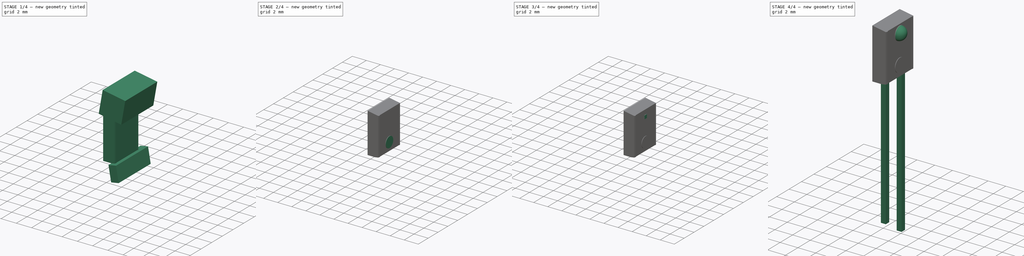
[diagram: build sequence overview — one tinted view per stage of 4, left to right]
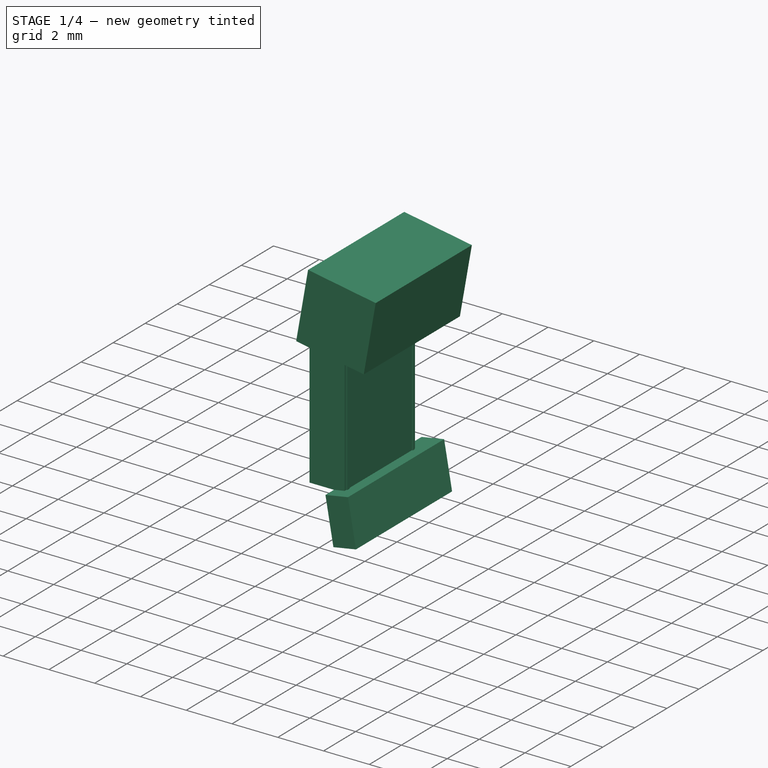
[diagram: stage 1 of 4 — iso view after this stage's code; geometry added in this stage tinted green]
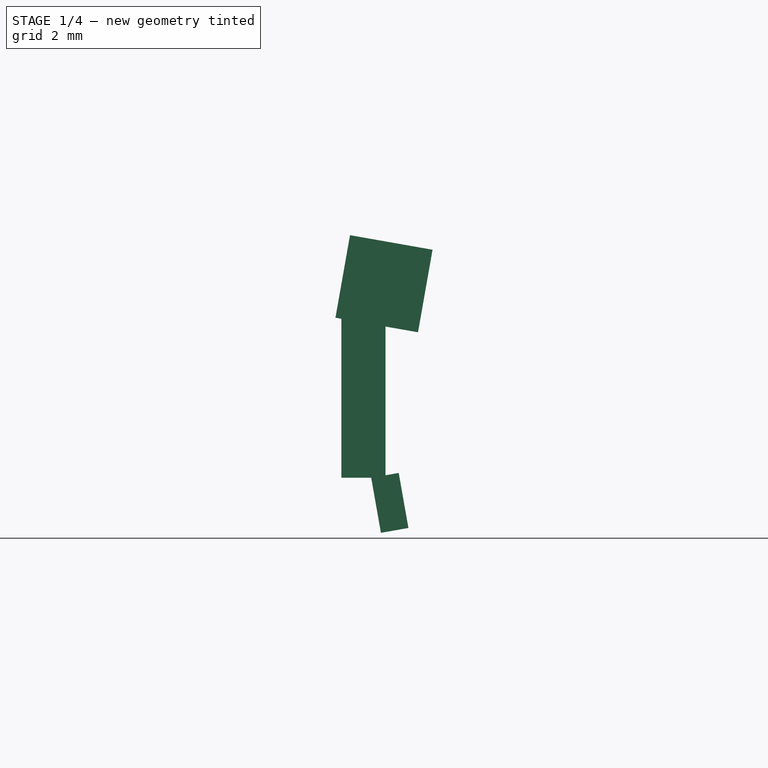
[diagram: stage 1 of 4 — front view after this stage's code; geometry added in this stage tinted green]
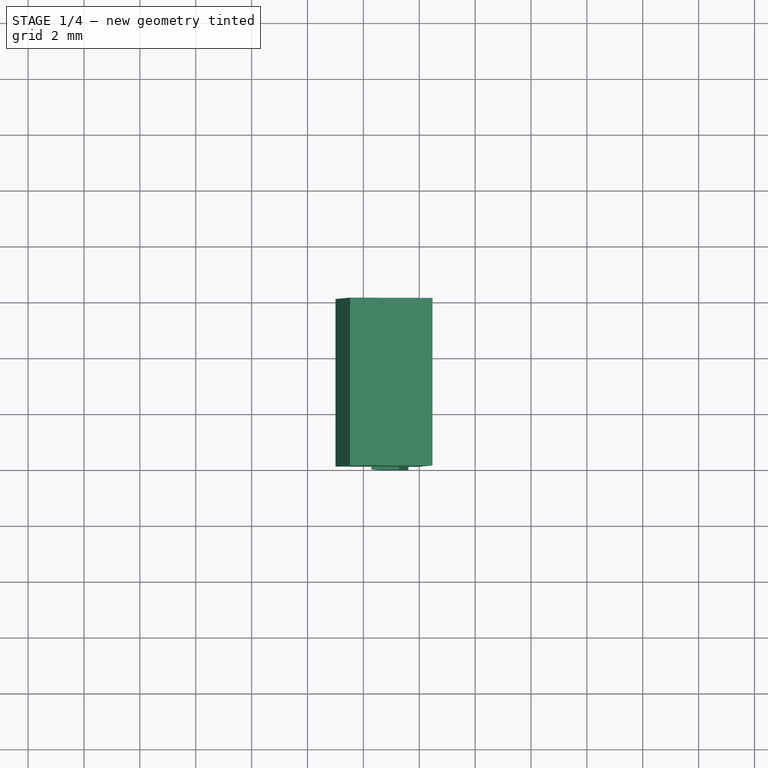
[diagram: stage 1 of 4 — top view after this stage's code; geometry added in this stage tinted green]
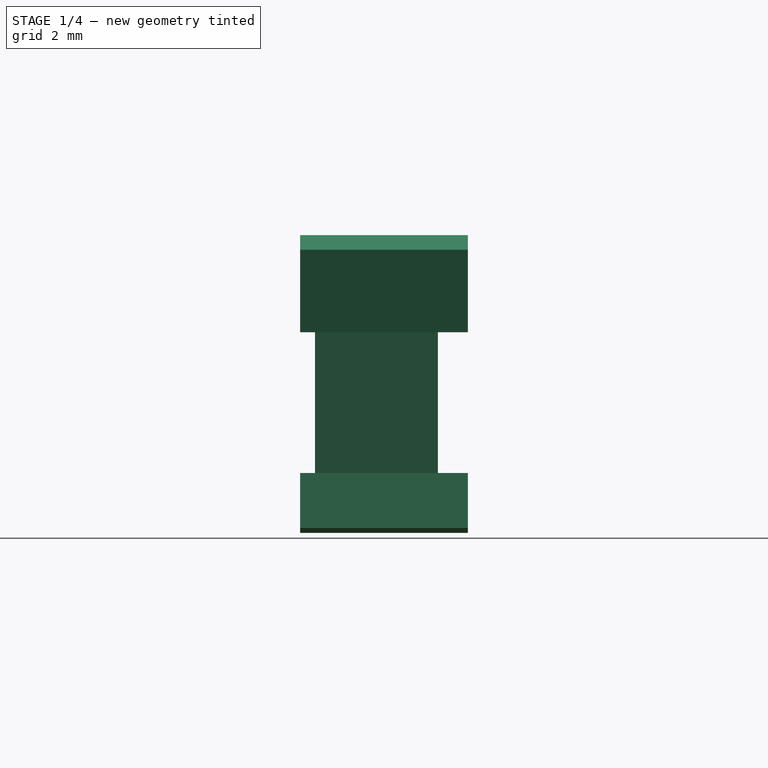
[diagram: stage 1 of 4 — right view after this stage's code; geometry added in this stage tinted green]
FCSTD DOCUMENT  (FreeCAD 0.17R11223 (Git))
Label: Phototransistor_Osram_LPT80A_04
License: All rights reserved
LicenseURL: http://en.wikipedia.org/wiki/All_rights_reserved
objects: Part::Box×5, Part::Cut×2, Sketcher::SketchObject×1, PartDesign::Pad×1, PartDesign::Body×1, Part::Cylinder×1, Part::Sphere×1, Part::MultiFuse×1
note: 14 computed .brp shape members not serialized (recipe doc carries the construction recipe); baked Part::Feature solids carry a one-line shape summary decoded from their .brp

FEATURE [Sketcher::SketchObject] Sketch
  MapMode = 5
  Support = -> [XY_Plane]
  sketch-geometry (13):
    g0: LineSegment StartX=-0.7875 StartY=0.93 StartZ=0 EndX=-0.7875 EndY=-3.47 EndZ=0
    g1: LineSegment StartX=0.7925 StartY=-3.37 StartZ=0 EndX=0.7925 EndY=-3.3699 EndZ=0
    g2: LineSegment StartX=0.7925 StartY=-3.3699 StartZ=0 EndX=0.7925 EndY=-3.2127 EndZ=0
    g3: LineSegment StartX=0.7425 StartY=0.93 StartZ=0 EndX=-0.7875 EndY=0.93 EndZ=0
    g4: LineSegment StartX=0.7425 StartY=0.93 StartZ=0 EndX=0.7425 EndY=0.83 EndZ=0
    g5: LineSegment StartX=0.7425 StartY=0.83 StartZ=0 EndX=0.7925 EndY=0.83 EndZ=0
    g6: LineSegment StartX=0.7925 StartY=0.73 StartZ=0 EndX=0.7925 EndY=0.83 EndZ=0
    g7: LineSegment StartX=0.7425 StartY=0.73 StartZ=0 EndX=0.7925 EndY=0.73 EndZ=0
    g8: LineSegment StartX=0.7925 StartY=-3.37 StartZ=0 EndX=0.7425 EndY=-3.37 EndZ=0
    g9: LineSegment StartX=0.7425 StartY=-3.37 StartZ=0 EndX=0.7425 EndY=-3.47 EndZ=0
    g10: LineSegment StartX=0.7425 StartY=-3.47 StartZ=0 EndX=-0.7875 EndY=-3.47 EndZ=0
    g11: LineSegment StartX=0.7925 StartY=-3.2127 StartZ=0 EndX=0.7425 EndY=-3.2127 EndZ=0
    g12: LineSegment StartX=0.7425 StartY=-3.2127 StartZ=0 EndX=0.7425 EndY=0.73 EndZ=0
  constraints (38):
    c: Vertical(g0)
    c: Vertical(g1)
    c: Coincident(g1,g2)
    c: Coincident(g3,g0)
    c: Horizontal(g3)
    c: DistanceY(g0,g0) = 4.4
    c: DistanceY(g-1,g0) = 0.93
    c: DistanceX(g0,g-1) = 0.7875
    c: Coincident(g3,g4)
    c: Vertical(g4)
    c: Coincident(g4,g5)
    c: Horizontal(g5)
    c: Coincident(g6,g5)
    c: Coincident(g7,g6)
    c: DistanceY(g4,g3) = 0.1
    c: DistanceX(g4,g5) = 0.05
    c: DistanceY(g6,g5) = 0.1
    c: DistanceX(g5,g6) = 0
    c: DistanceY(g7,g6) = 0
    c: DistanceX(g7,g6) = 0.05
    c: Coincident(g1,g8)
    c: Horizontal(g8)
    c: Coincident(g8,g9)
    c: Vertical(g9)
    c: Coincident(g9,g10)
    c: Coincident(g10,g0)
    c: Horizontal(g10)
    c: DistanceX(g8,g1) = 0.05
    c: DistanceY(g9,g8) = 0.1
    c: DistanceY(g1,g1) = 0.0001
    c: Coincident(g2,g11)
    c: Horizontal(g11)
    c: Coincident(g11,g12)
    c: Coincident(g12,g7)
    c: DistanceX(g11,g2) = 0.05
    c: DistanceX(g1,g2) = 0
    c: DistanceX(g7,g11) = 0
    c: DistanceX(g0,g5) = 1.58
FEATURE [PartDesign::Pad] Pad
  Length = 5.7
  Length2 = 100
  Profile = -> Sketch
  Type = 0
FEATURE [Part::Box] Box003  label="Kub"
  AttacherType = Attacher::AttachEngine3D
  Height = 3
  Length = 3
  Placement = pos=(-1,-4,5.73) rot=(0,1,0;0.174533rad)
  Width = 6
FEATURE [Part::Box] Box004  label="Kub001"
  AttacherType = Attacher::AttachEngine3D
  Height = 1
  Length = 2
  Placement = pos=(0.28,-4,0) rot=(0,1,0;1.39626rad)
  Width = 6
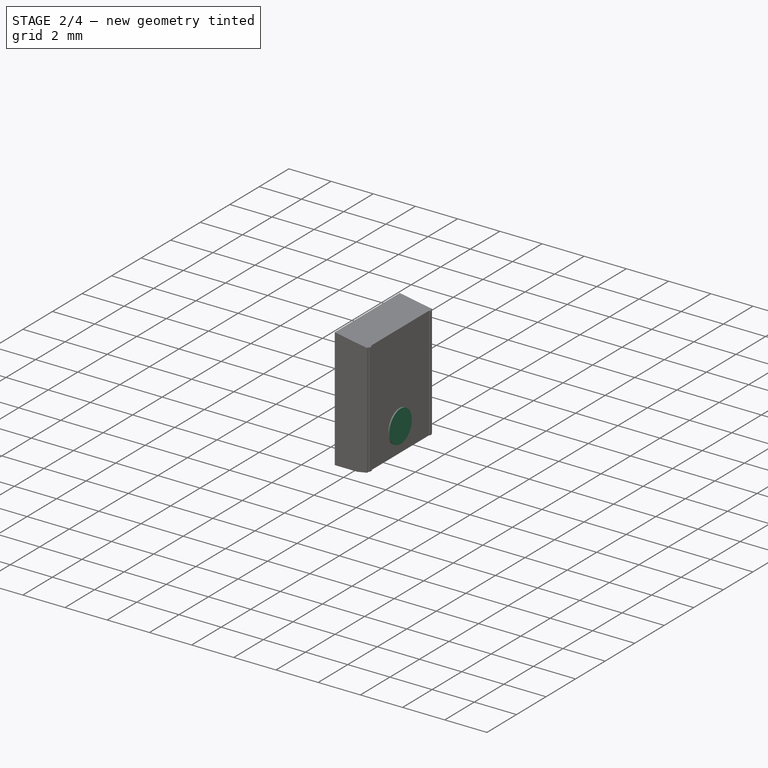
[diagram: stage 2 of 4 — iso view after this stage's code; geometry added in this stage tinted green]
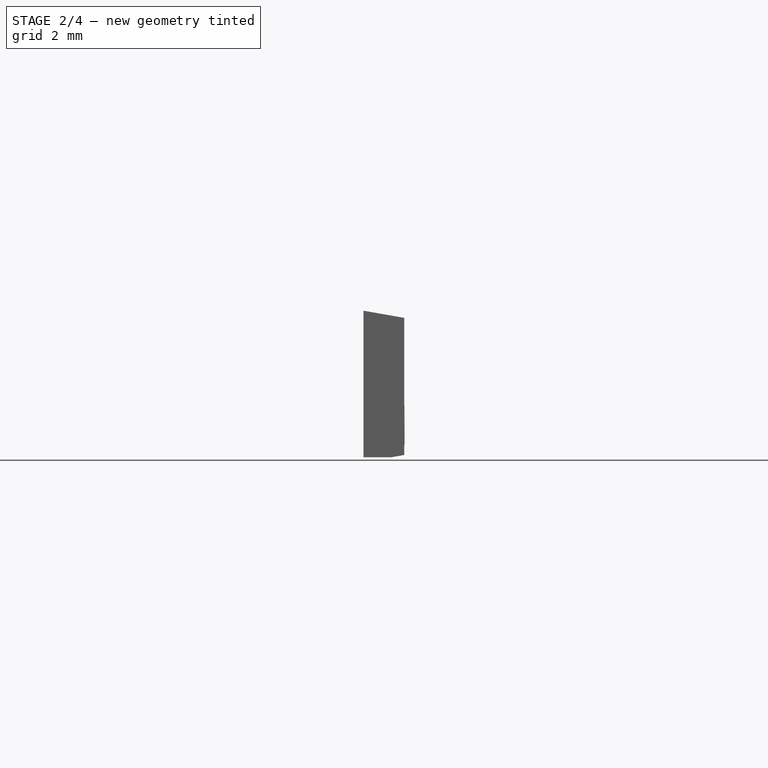
[diagram: stage 2 of 4 — front view after this stage's code; geometry added in this stage tinted green]
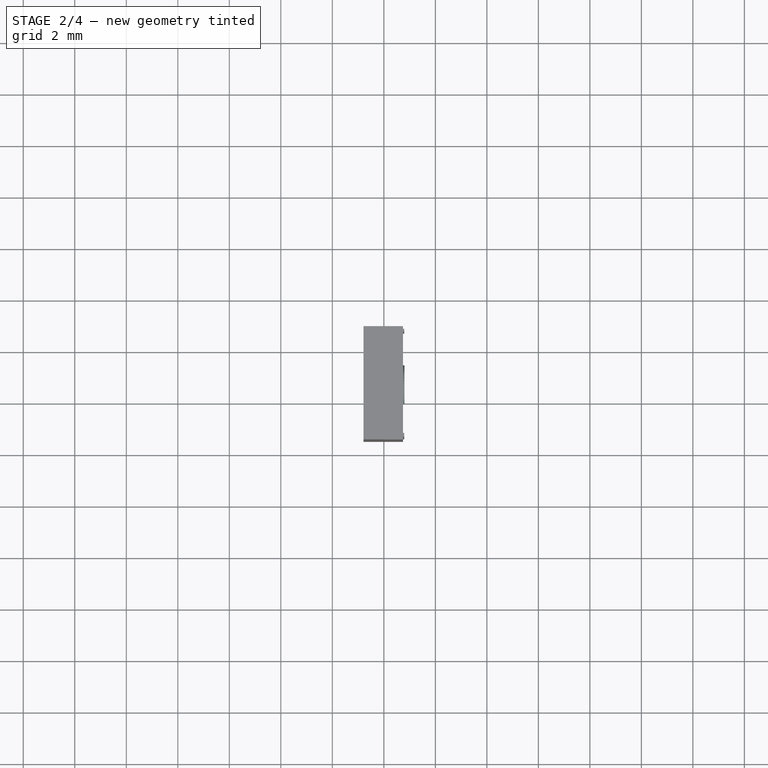
[diagram: stage 2 of 4 — top view after this stage's code; geometry added in this stage tinted green]
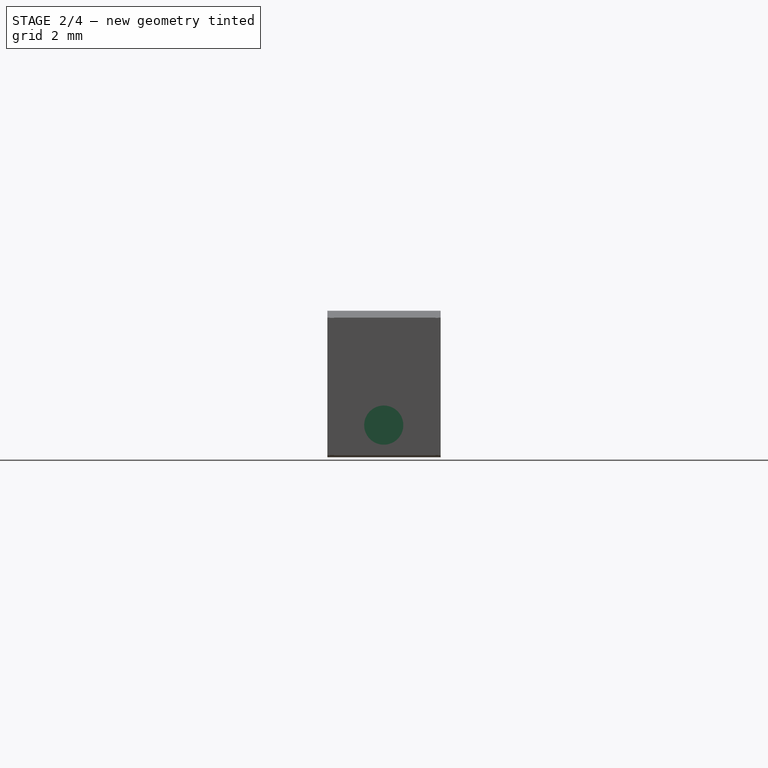
[diagram: stage 2 of 4 — right view after this stage's code; geometry added in this stage tinted green]
FEATURE [Part::Cylinder] Cylinder  label="Plastic marking"
  Angle = 360
  AttacherType = Attacher::AttachEngine3D
  Height = 0.2
  Placement = pos=(0.6,-1.28,1.25) rot=(0,1,0;1.5708rad)
  Radius = 0.76
FEATURE [Part::Cut] Cut
  Base = -> Pad
  Tool = -> Box003
FEATURE [Part::Cut] Cut001
  Base = -> Cut
  Tool = -> Box004
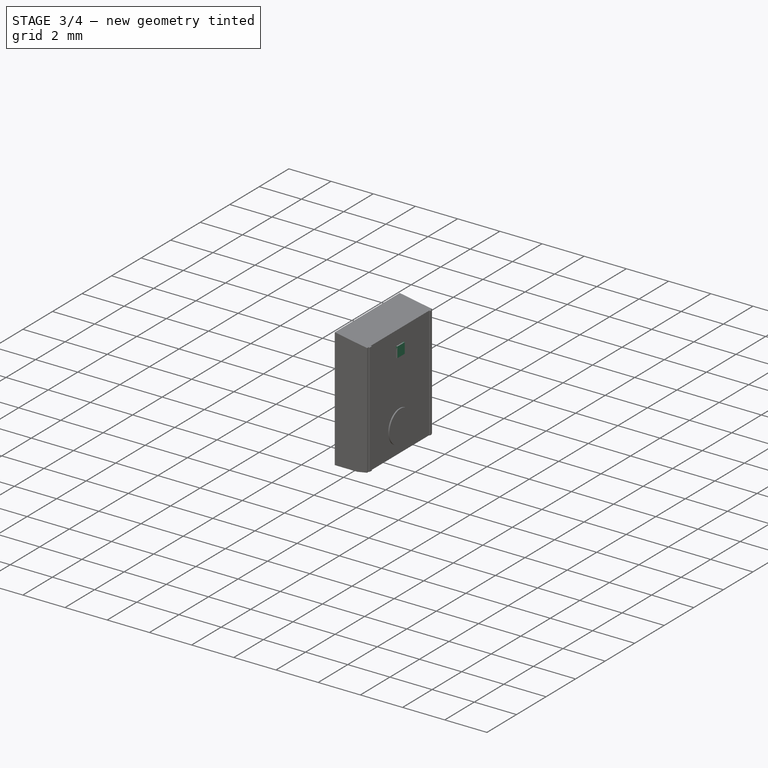
[diagram: stage 3 of 4 — iso view after this stage's code; geometry added in this stage tinted green]
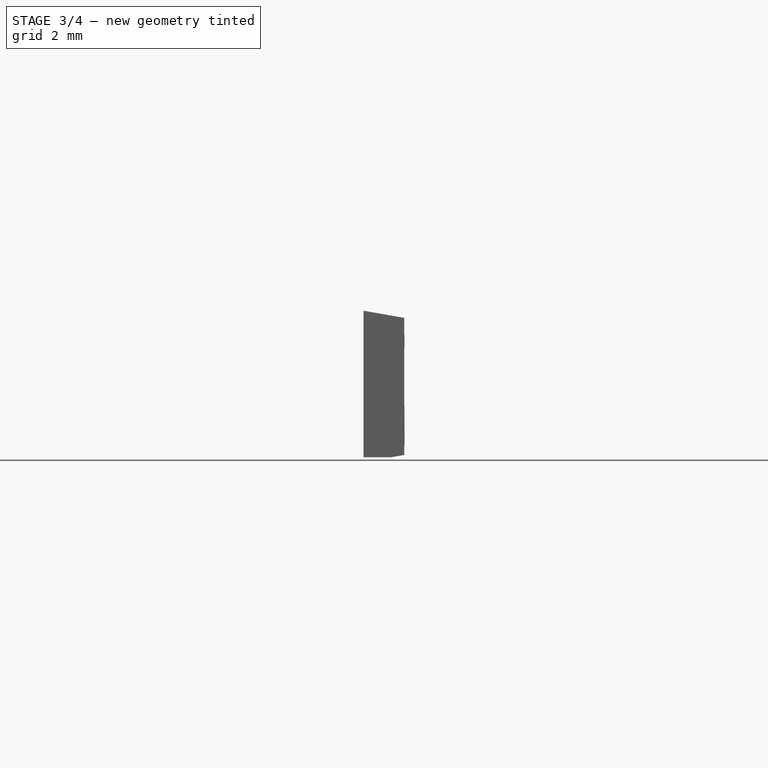
[diagram: stage 3 of 4 — front view after this stage's code; geometry added in this stage tinted green]
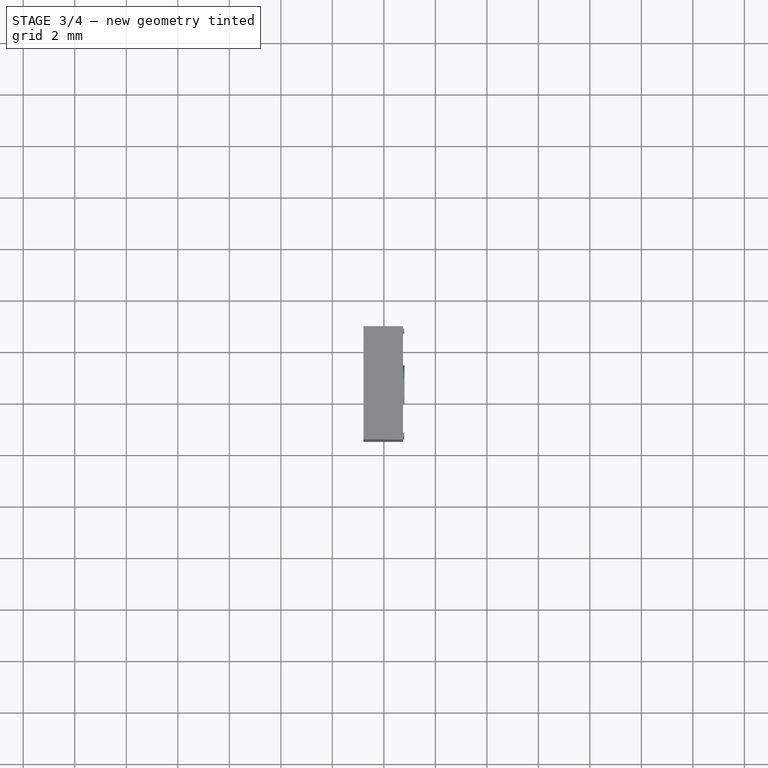
[diagram: stage 3 of 4 — top view after this stage's code; geometry added in this stage tinted green]
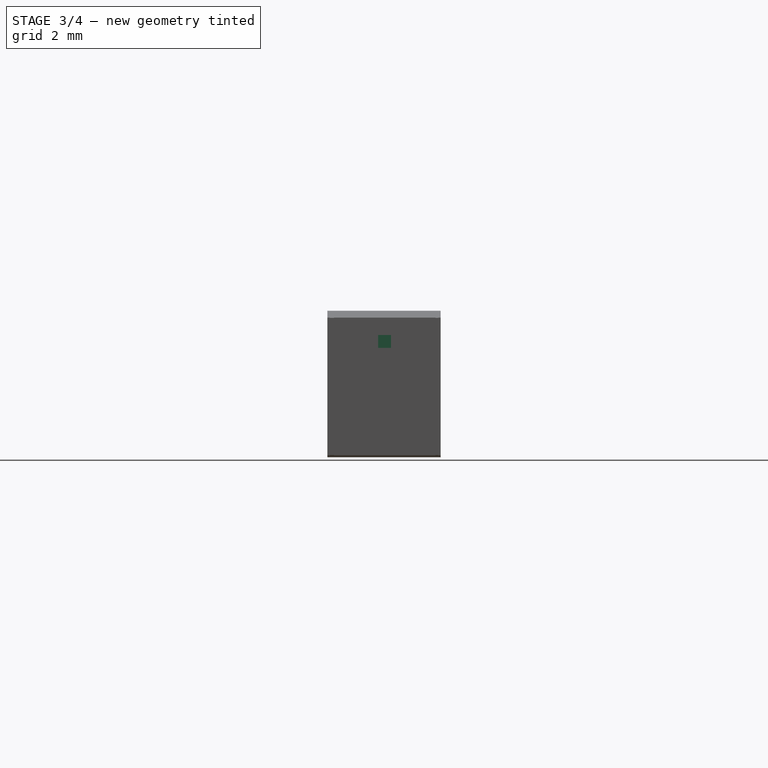
[diagram: stage 3 of 4 — right view after this stage's code; geometry added in this stage tinted green]
FEATURE [Part::Box] Box002  label="Diode"
  AttacherType = Attacher::AttachEngine3D
  Height = 0.5
  Length = 0.2
  Placement = pos=(0.6,-1.5,4.25) rot=(0,0,1;0rad)
  Width = 0.5
FEATURE [Part::MultiFuse] Fusion
  Shapes = -> [Cut001,Cylinder]
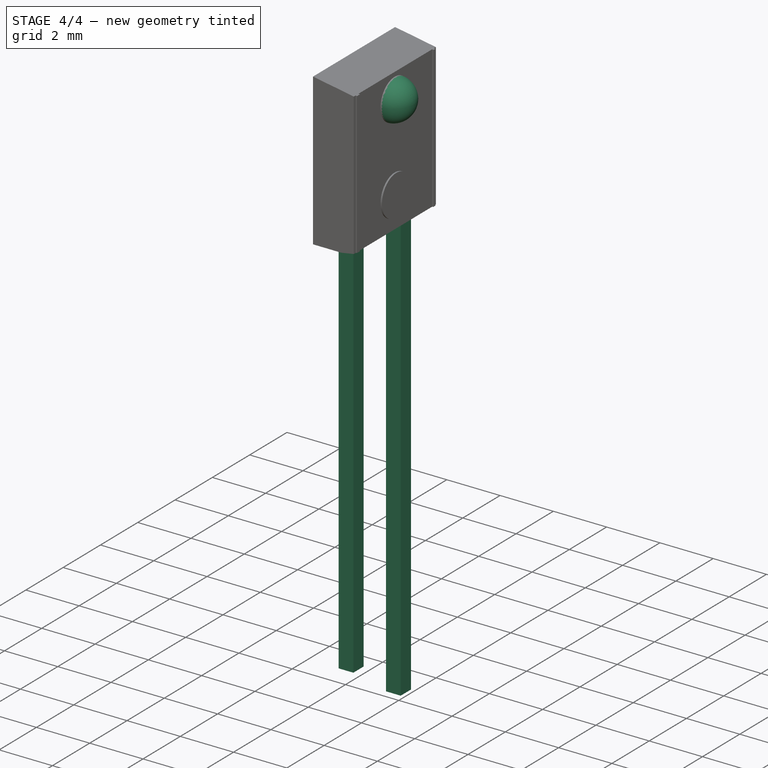
[diagram: stage 4 of 4 — iso view after this stage's code; geometry added in this stage tinted green]
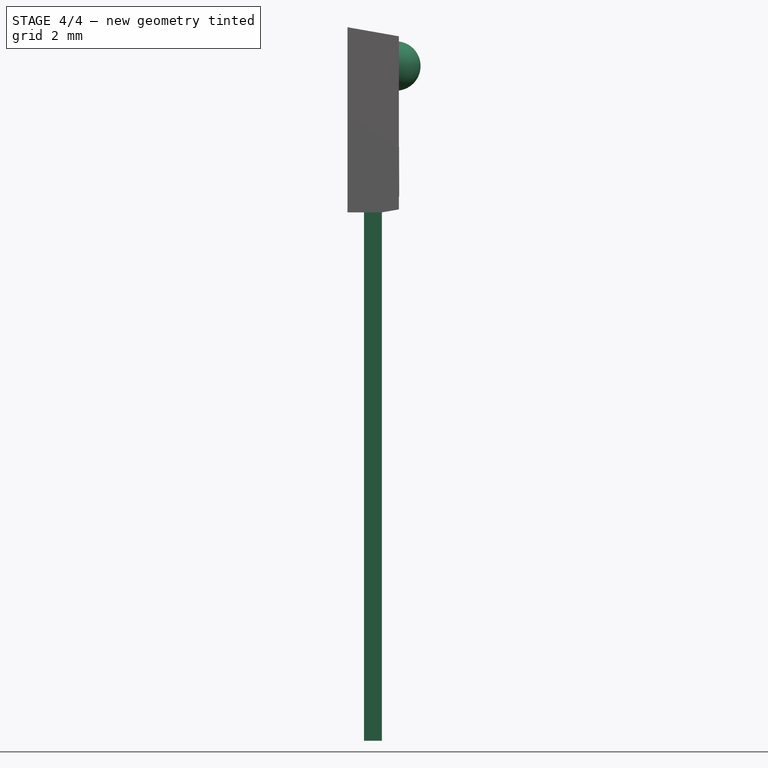
[diagram: stage 4 of 4 — front view after this stage's code; geometry added in this stage tinted green]
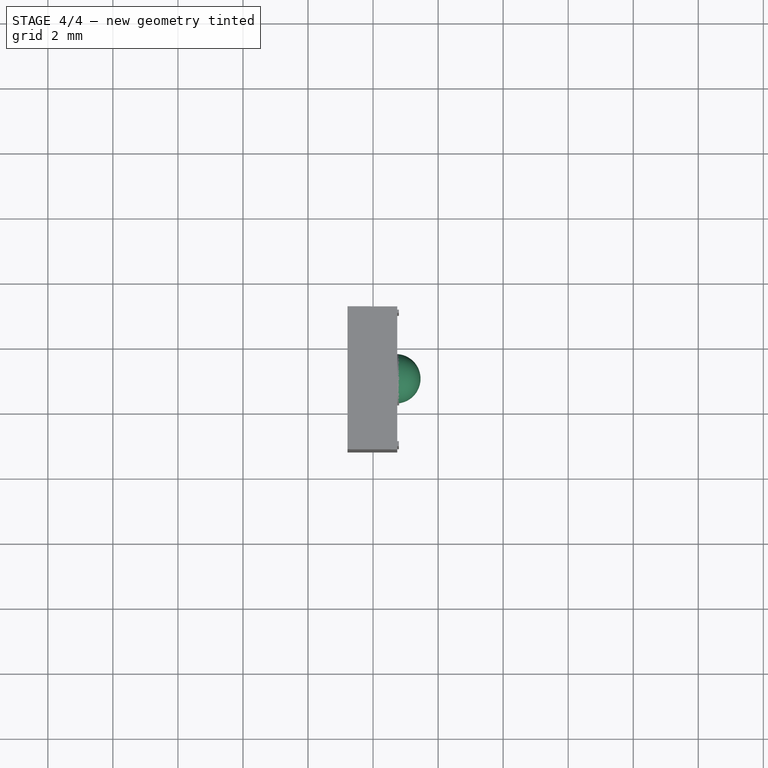
[diagram: stage 4 of 4 — top view after this stage's code; geometry added in this stage tinted green]
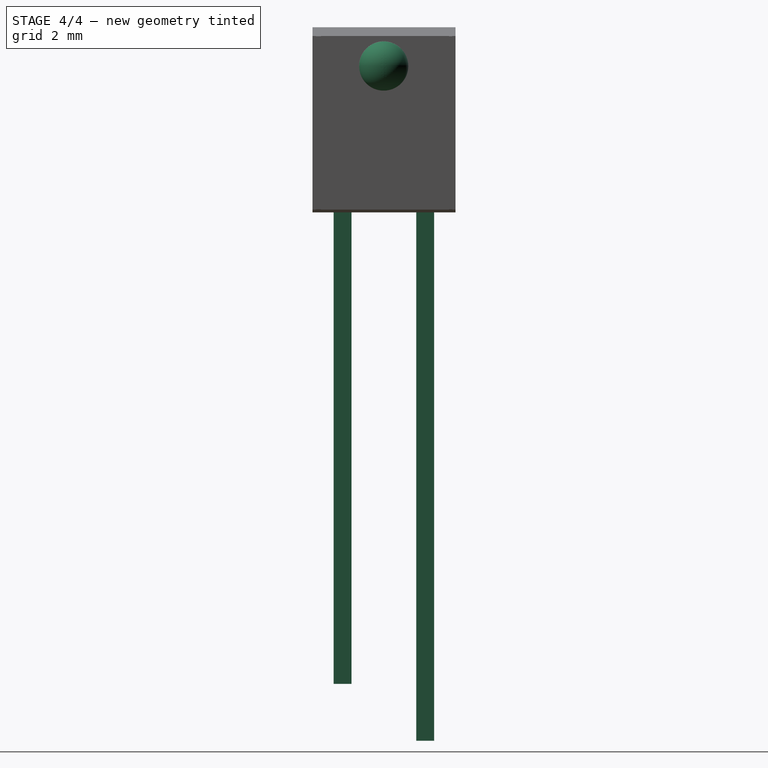
[diagram: stage 4 of 4 — right view after this stage's code; geometry added in this stage tinted green]
FEATURE [PartDesign::Body] Body
  Group = -> [Sketch,Pad]
  Origin = -> BodyOrigin
  Tip = -> Pad
FEATURE [Part::Box] Box  label="Collector"
  AttacherType = Attacher::AttachEngine3D
  Height = 16.25
  Length = 0.55
  Placement = pos=(-0.28,-0.28,-16.25) rot=(0,0,1;0rad)
  Width = 0.55
FEATURE [Part::Box] Box001  label="Emitter"
  AttacherType = Attacher::AttachEngine3D
  Height = 14.5
  Length = 0.55
  Placement = pos=(-0.28,-2.82,-14.5) rot=(0,0,1;0rad)
  Width = 0.55
FEATURE [Part::Sphere] Sphere  label="DiodeLense"
  Angle1 = -90
  Angle2 = 90
  Angle3 = 360
  AttacherType = Attacher::AttachEngine3D
  Placement = pos=(0.7,-1.28,4.5) rot=(0,0,1;0rad)
  Radius = 0.76
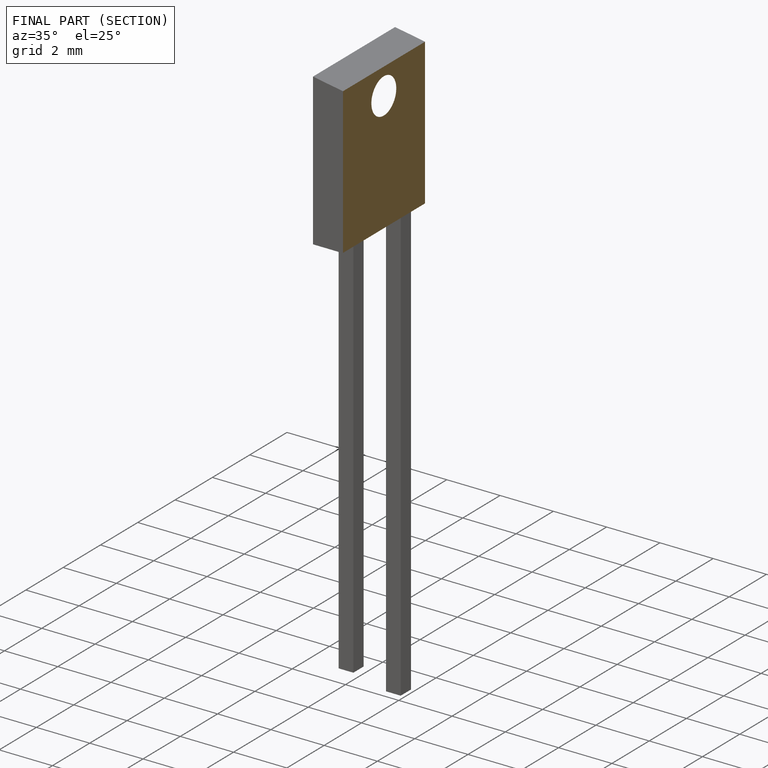
[diagram: finished part — half-section view (interior)]
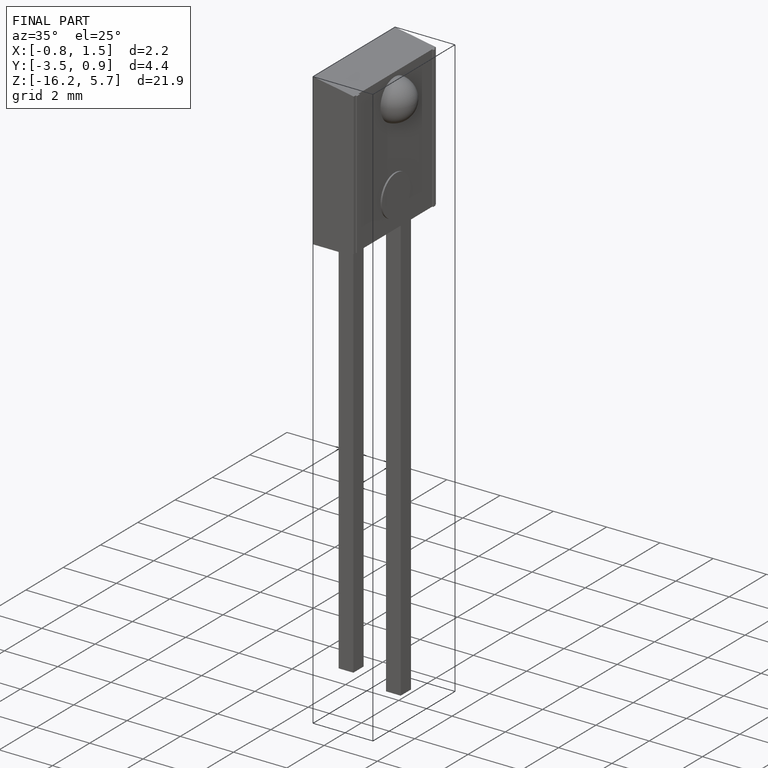
[diagram: finished part — iso view with bounding-box wireframe]
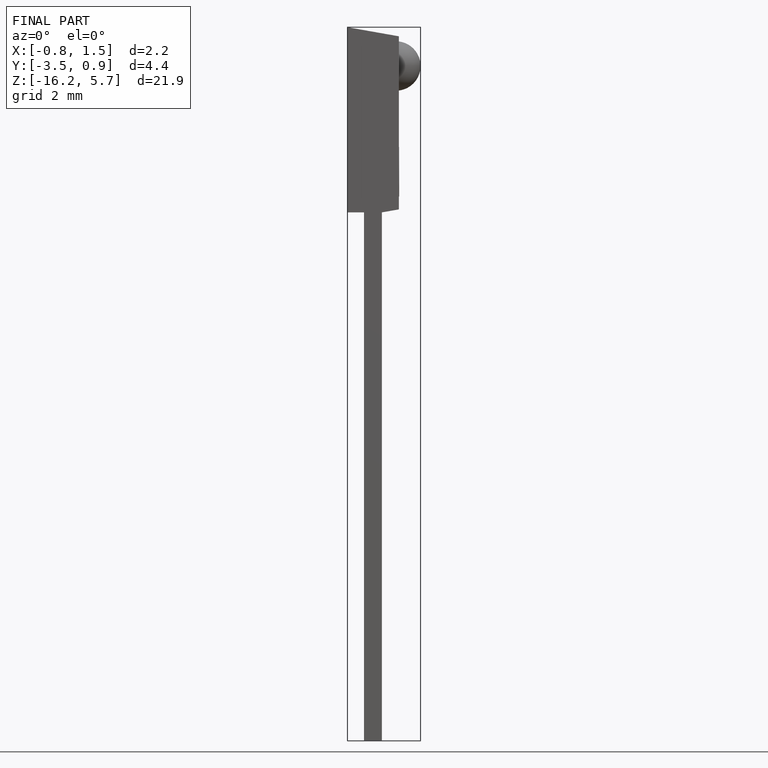
[diagram: finished part — front view with bounding-box wireframe]
